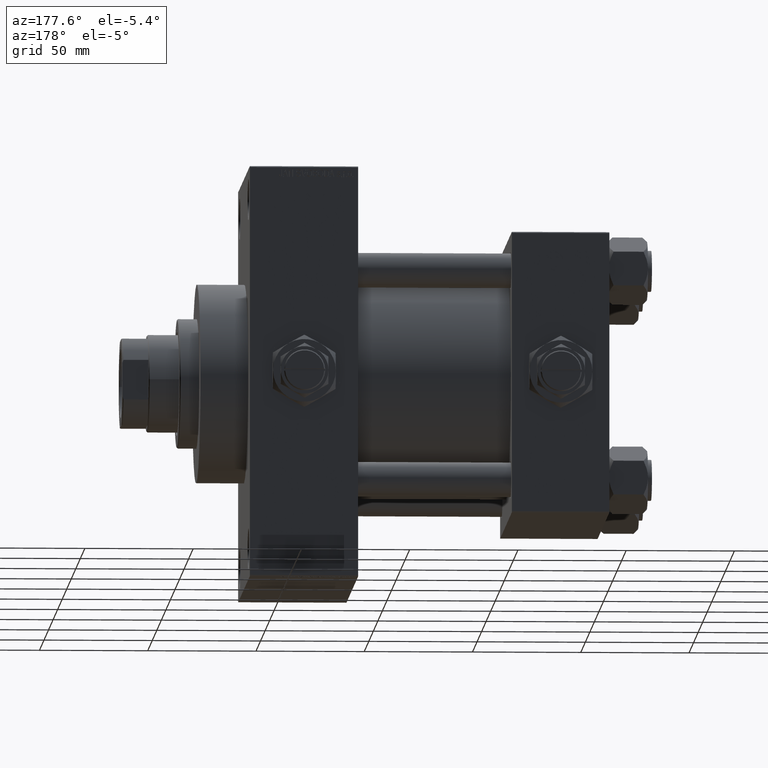
[diagram: clean part render]
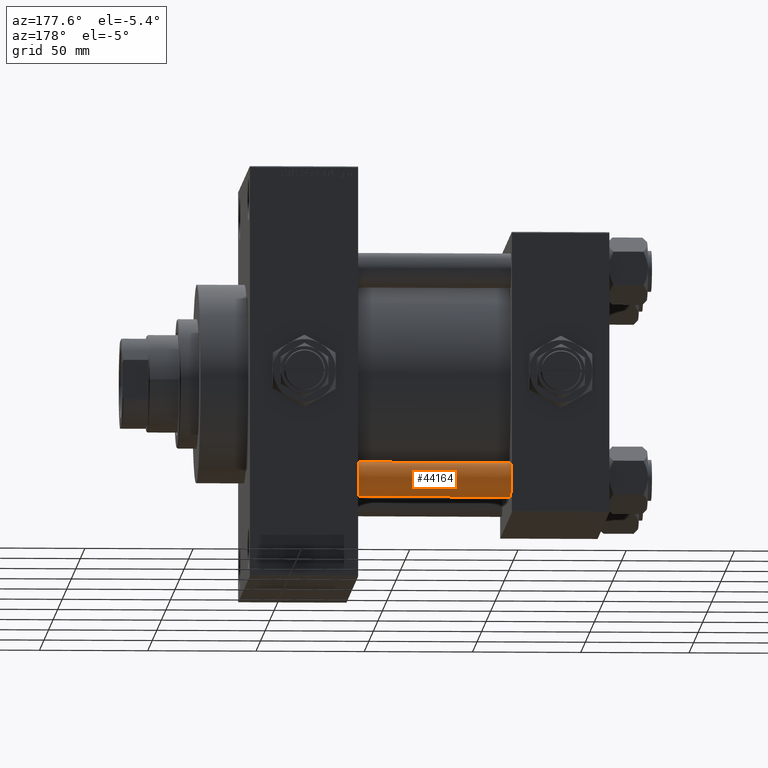
[diagram: same view with one face highlighted and labeled with its STEP entity id]
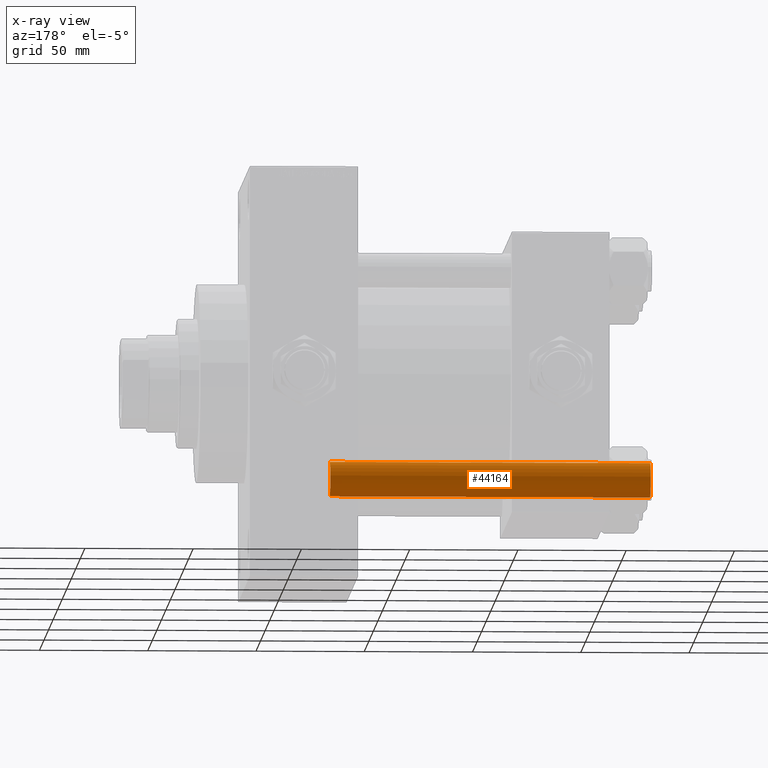
[diagram: x-ray of the same camera — body ghosted, the highlighted face saturated]
A machine part, auxiliary view. The second image highlights one B-rep face of the part: STEP entity #44164.
The next image is the same camera in x-ray: the body ghosted, the highlighted face saturated — about 0% of this face is hidden behind the body in this view.
In plain terms, the highlighted cylindrical surface (edge-blend (fillet) strip) has radius 8 mm, axis along (-1, -0, 0).
Its self-contained STEP definition (entity closure, byte-faithful):
#1634 = CARTESIAN_POINT ( 'NONE',  ( 8.000000000000000000, 9.797174393178825657E-16, 0.5000000000000281997 ) ) ;
#1978 = ORIENTED_EDGE ( 'NONE', *, *, #5062, .T. ) ;
#4318 = CARTESIAN_POINT ( 'NONE',  ( -8.000000000000000000, 0.000000000000000000, 149.0000000000000000 ) ) ;
#4714 = CARTESIAN_POINT ( 'NONE',  ( 8.000000000000000000, 9.797174393178825657E-16, 149.0000000000000000 ) ) ;
#5062 = EDGE_CURVE ( 'NONE', #44014, #23463, #36037, .T. ) ;
#5081 = DIRECTION ( 'NONE',  ( -0.000000000000000000, -0.000000000000000000, -1.000000000000000000 ) ) ;
#5560 = EDGE_CURVE ( 'NONE', #14789, #26005, #7908, .T. ) ;
#5813 = CYLINDRICAL_SURFACE ( 'NONE', #6172, 8.000000000000000000 ) ;
#6172 = AXIS2_PLACEMENT_3D ( 'NONE', #43356, #5081, #20424 ) ;
#7908 = CIRCLE ( 'NONE', #41652, 8.000000000000000000 ) ;
#11208 = ORIENTED_EDGE ( 'NONE', *, *, #38211, .T. ) ;
#12502 = DIRECTION ( 'NONE',  ( -0.000000000000000000, -0.000000000000000000, -1.000000000000000000 ) ) ;
#12905 = DIRECTION ( 'NONE',  ( 1.000000000000000000, 0.000000000000000000, 0.000000000000000000 ) ) ;
#13394 = DIRECTION ( 'NONE',  ( 0.000000000000000000, 0.000000000000000000, -1.000000000000000000 ) ) ;
#14789 = VERTEX_POINT ( 'NONE', #1634 ) ;
#15294 = CARTESIAN_POINT ( 'NONE',  ( 8.000000000000000000, 9.797174393178825657E-16, 148.5000000000000000 ) ) ;
#16747 = DIRECTION ( 'NONE',  ( 1.000000000000000000, 0.000000000000000000, 0.000000000000000000 ) ) ;
#20424 = DIRECTION ( 'NONE',  ( -1.000000000000000000, 0.000000000000000000, 0.000000000000000000 ) ) ;
#23463 = VERTEX_POINT ( 'NONE', #15294 ) ;
#26005 = VERTEX_POINT ( 'NONE', #33831 ) ;
#26363 = VECTOR ( 'NONE', #43324, 1000.000000000000000 ) ;
#27507 = CARTESIAN_POINT ( 'NONE',  ( -8.000000000000000000, 0.000000000000000000, 148.5000000000000000 ) ) ;
#29819 = ORIENTED_EDGE ( 'NONE', *, *, #5560, .T. ) ;
#30715 = ORIENTED_EDGE ( 'NONE', *, *, #46166, .F. ) ;
#31995 = LINE ( 'NONE', #4318, #26363 ) ;
#32128 = DIRECTION ( 'NONE',  ( -0.000000000000000000, -0.000000000000000000, 1.000000000000000000 ) ) ;
#33831 = CARTESIAN_POINT ( 'NONE',  ( -8.000000000000000000, 0.000000000000000000, 0.5000000000000281997 ) ) ;
#35223 = AXIS2_PLACEMENT_3D ( 'NONE', #44113, #13394, #12905 ) ;
#36037 = CIRCLE ( 'NONE', #35223, 8.000000000000000000 ) ;
#38211 = EDGE_CURVE ( 'NONE', #23463, #14789, #38957, .T. ) ;
#38957 = LINE ( 'NONE', #4714, #46987 ) ;
#39185 = CARTESIAN_POINT ( 'NONE',  ( 0.000000000000000000, 0.000000000000000000, 0.5000000000000281997 ) ) ;
#40311 = FACE_OUTER_BOUND ( 'NONE', #44294, .T. ) ;
#41652 = AXIS2_PLACEMENT_3D ( 'NONE', #39185, #32128, #16747 ) ;
#43324 = DIRECTION ( 'NONE',  ( -0.000000000000000000, -0.000000000000000000, -1.000000000000000000 ) ) ;
#43356 = CARTESIAN_POINT ( 'NONE',  ( 0.000000000000000000, 0.000000000000000000, 149.0000000000000000 ) ) ;
#44014 = VERTEX_POINT ( 'NONE', #27507 ) ;
#44113 = CARTESIAN_POINT ( 'NONE',  ( 0.000000000000000000, 0.000000000000000000, 148.5000000000000000 ) ) ;
#44164 = ADVANCED_FACE ( 'NONE', ( #40311 ), #5813, .T. ) ;
#44294 = EDGE_LOOP ( 'NONE', ( #1978, #11208, #29819, #30715 ) ) ;
#46166 = EDGE_CURVE ( 'NONE', #44014, #26005, #31995, .T. ) ;
#46987 = VECTOR ( 'NONE', #12502, 1000.000000000000000 ) ;